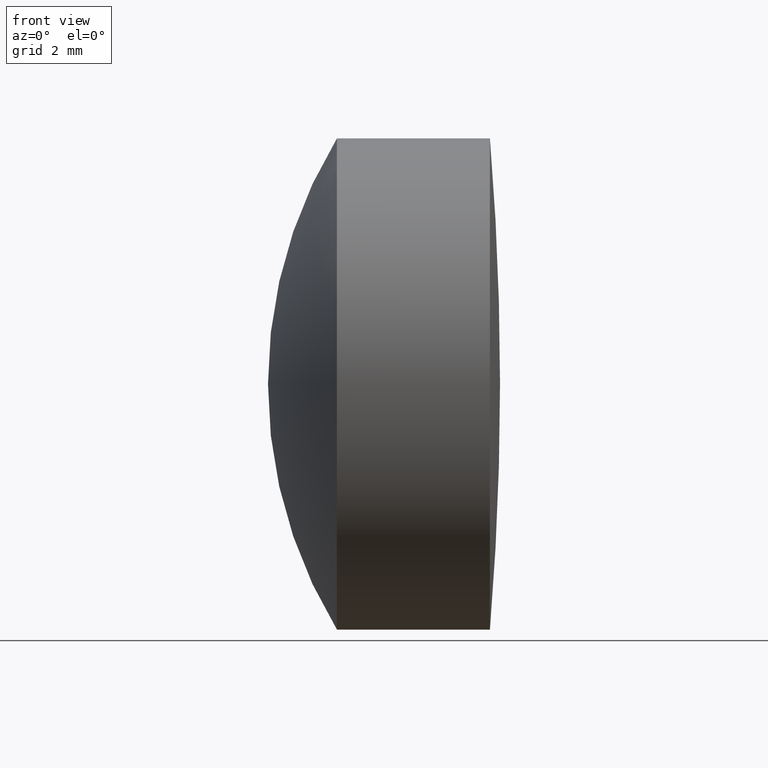
[diagram: clean part render]
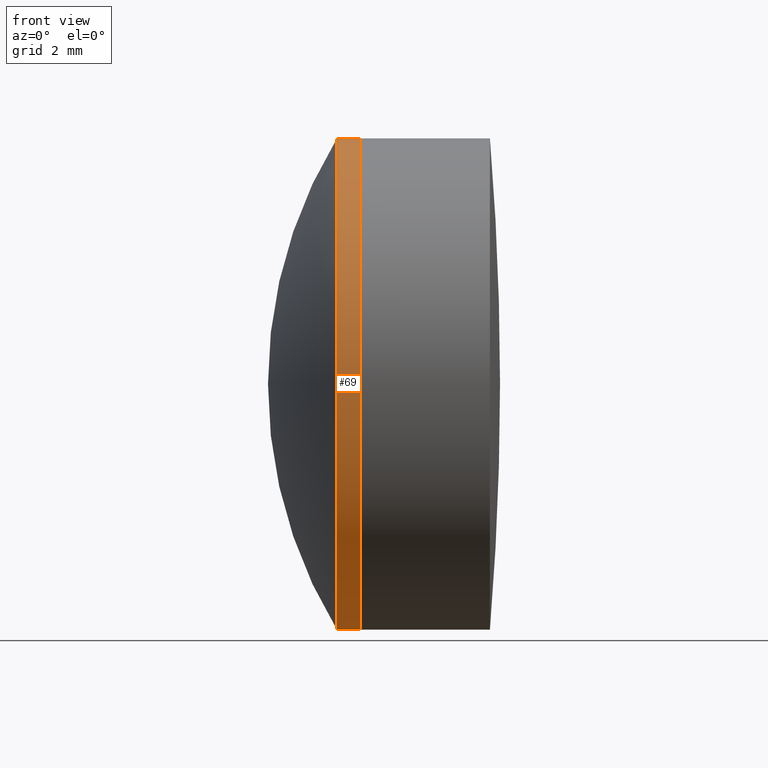
[diagram: same view with one face highlighted and labeled with its STEP entity id]
A machine part, front view. The second image highlights one B-rep face of the part: STEP entity #69.
In plain terms, the highlighted cylindrical surface (partial cylindrical patch) has radius 6.35 mm, axis along (-1, -0, -0).
Its self-contained STEP definition (entity closure, byte-faithful):
#23 = CIRCLE ( 'NONE', #255, 6.349999999999996100 ) ;
#36 = CARTESIAN_POINT ( 'NONE',  ( 124.5233095260452400, 7.776507174585689200E-016, -6.349999999999996100 ) ) ;
#38 = VECTOR ( 'NONE', #96, 1000.000000000000000 ) ;
#66 = CARTESIAN_POINT ( 'NONE',  ( 269.1964474457524300, 7.776507174585689200E-016, -6.349999999999996100 ) ) ;
#68 = DIRECTION ( 'NONE',  ( -1.000000000000000000, -0.0000000000000000000, -0.0000000000000000000 ) ) ;
#69 = ADVANCED_FACE ( 'NONE', ( #148 ), #101, .T. ) ;
#75 = ORIENTED_EDGE ( 'NONE', *, *, #242, .T. ) ;
#76 = EDGE_CURVE ( 'NONE', #322, #248, #123, .T. ) ;
#81 = CARTESIAN_POINT ( 'NONE',  ( 268.5917833294578300, 7.776507174585689200E-016, -6.349999999999999600 ) ) ;
#92 = VERTEX_POINT ( 'NONE', #289 ) ;
#96 = DIRECTION ( 'NONE',  ( -1.000000000000000000, -0.0000000000000000000, -0.0000000000000000000 ) ) ;
#101 = CYLINDRICAL_SURFACE ( 'NONE', #235, 6.349999999999996100 ) ;
#106 = LINE ( 'NONE', #213, #38 ) ;
#123 = LINE ( 'NONE', #36, #300 ) ;
#130 = EDGE_CURVE ( 'NONE', #248, #200, #229, .T. ) ;
#131 = CARTESIAN_POINT ( 'NONE',  ( 269.1964474457524300, 0.0000000000000000000, 0.0000000000000000000 ) ) ;
#138 = EDGE_CURVE ( 'NONE', #92, #200, #106, .T. ) ;
#148 = FACE_OUTER_BOUND ( 'NONE', #208, .T. ) ;
#156 = DIRECTION ( 'NONE',  ( 0.0000000000000000000, 0.0000000000000000000, 1.000000000000000000 ) ) ;
#162 = DIRECTION ( 'NONE',  ( -1.000000000000000000, -0.0000000000000000000, -0.0000000000000000000 ) ) ;
#175 = AXIS2_PLACEMENT_3D ( 'NONE', #192, #267, #195 ) ;
#192 = CARTESIAN_POINT ( 'NONE',  ( 268.5917833294578300, 0.0000000000000000000, 0.0000000000000000000 ) ) ;
#195 = DIRECTION ( 'NONE',  ( 0.0000000000000000000, 0.0000000000000000000, 1.000000000000000000 ) ) ;
#200 = VERTEX_POINT ( 'NONE', #211 ) ;
#208 = EDGE_LOOP ( 'NONE', ( #234, #75, #336, #342 ) ) ;
#211 = CARTESIAN_POINT ( 'NONE',  ( 268.5917833294578300, 0.0000000000000000000, 6.349999999999996100 ) ) ;
#213 = CARTESIAN_POINT ( 'NONE',  ( 124.5233095260452400, 0.0000000000000000000, 6.349999999999996100 ) ) ;
#229 = CIRCLE ( 'NONE', #175, 6.349999999999996100 ) ;
#233 = DIRECTION ( 'NONE',  ( 0.0000000000000000000, 0.0000000000000000000, 1.000000000000000000 ) ) ;
#234 = ORIENTED_EDGE ( 'NONE', *, *, #76, .F. ) ;
#235 = AXIS2_PLACEMENT_3D ( 'NONE', #247, #68, #156 ) ;
#242 = EDGE_CURVE ( 'NONE', #322, #92, #23, .T. ) ;
#247 = CARTESIAN_POINT ( 'NONE',  ( 124.5233095260452400, 0.0000000000000000000, 0.0000000000000000000 ) ) ;
#248 = VERTEX_POINT ( 'NONE', #81 ) ;
#255 = AXIS2_PLACEMENT_3D ( 'NONE', #131, #162, #233 ) ;
#267 = DIRECTION ( 'NONE',  ( -1.000000000000000000, -0.0000000000000000000, -0.0000000000000000000 ) ) ;
#289 = CARTESIAN_POINT ( 'NONE',  ( 269.1964474457524300, 0.0000000000000000000, 6.349999999999996100 ) ) ;
#300 = VECTOR ( 'NONE', #344, 1000.000000000000000 ) ;
#322 = VERTEX_POINT ( 'NONE', #66 ) ;
#336 = ORIENTED_EDGE ( 'NONE', *, *, #138, .T. ) ;
#342 = ORIENTED_EDGE ( 'NONE', *, *, #130, .F. ) ;
#344 = DIRECTION ( 'NONE',  ( -1.000000000000000000, -0.0000000000000000000, -0.0000000000000000000 ) ) ;